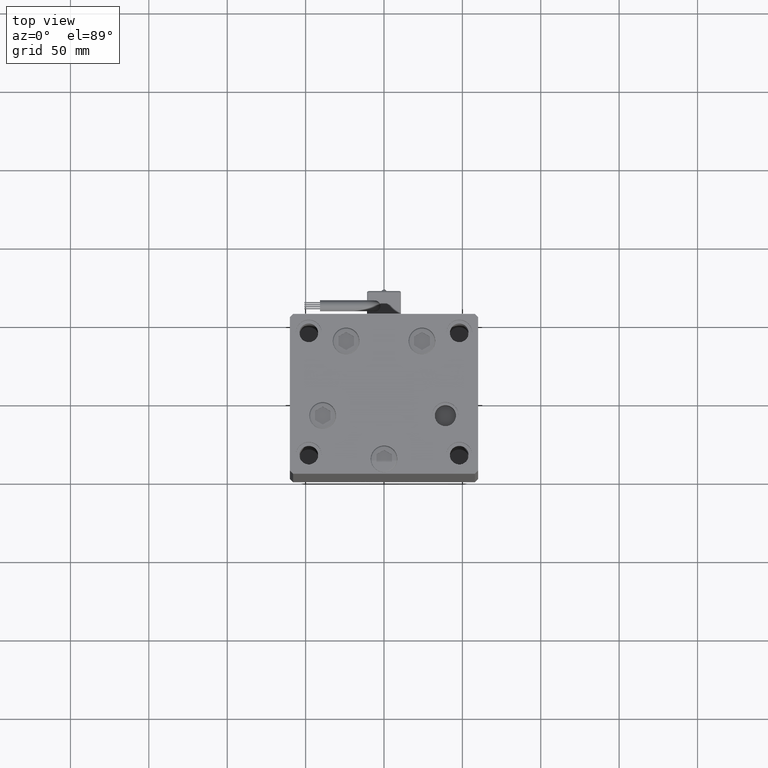
[diagram: clean part render]
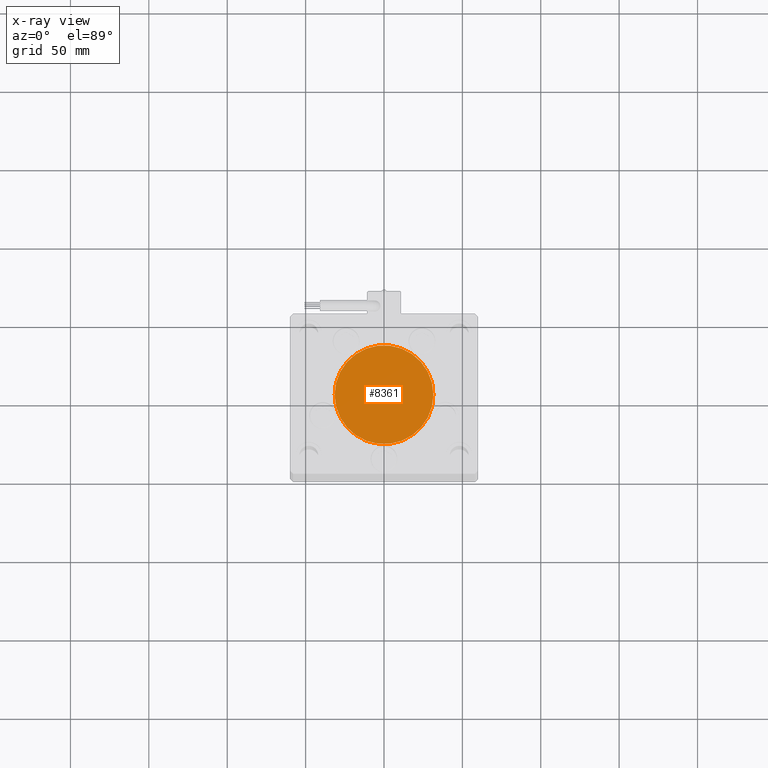
[diagram: x-ray — body ghosted, one internal face saturated and labeled with its STEP entity id]
A machine part, top view, then the same camera in x-ray: the body is ghosted and one INTERNAL B-rep face — a face not visible from any outside direction — is saturated and labeled: STEP entity #8361.
In plain terms, the highlighted planar face has unit normal (0, 0, -1).
Its self-contained STEP definition (entity closure, byte-faithful):
#577 = FACE_OUTER_BOUND ( 'NONE', #13425, .T. ) ;
#2435 = AXIS2_PLACEMENT_3D ( 'NONE', #29148, #16629, #54761 ) ;
#8361 = ADVANCED_FACE ( 'NONE', ( #577 ), #22991, .T. ) ;
#10413 = DIRECTION ( 'NONE',  ( -1.000000000000000000, 0.000000000000000000, 0.000000000000000000 ) ) ;
#12666 = VERTEX_POINT ( 'NONE', #42573 ) ;
#12932 = AXIS2_PLACEMENT_3D ( 'NONE', #23442, #48521, #10413 ) ;
#13425 = EDGE_LOOP ( 'NONE', ( #49765, #37209 ) ) ;
#16629 = DIRECTION ( 'NONE',  ( 0.000000000000000000, 0.000000000000000000, -1.000000000000000000 ) ) ;
#21156 = CARTESIAN_POINT ( 'NONE',  ( 0.000000000000000000, 0.000000000000000000, -34.25000000000000000 ) ) ;
#22991 = PLANE ( 'NONE',  #35499 ) ;
#23442 = CARTESIAN_POINT ( 'NONE',  ( 0.000000000000000000, 0.000000000000000000, -34.25000000000000000 ) ) ;
#26417 = DIRECTION ( 'NONE',  ( 0.000000000000000000, 0.000000000000000000, -1.000000000000000000 ) ) ;
#26442 = CIRCLE ( 'NONE', #2435, 31.50000000000000000 ) ;
#29031 = CARTESIAN_POINT ( 'NONE',  ( -31.50000000000000000, 3.857637417314161900E-15, -34.25000000000000000 ) ) ;
#29148 = CARTESIAN_POINT ( 'NONE',  ( 0.000000000000000000, 0.000000000000000000, -34.25000000000000000 ) ) ;
#29225 = EDGE_CURVE ( 'NONE', #47357, #12666, #26442, .T. ) ;
#29799 = CIRCLE ( 'NONE', #12932, 31.50000000000000000 ) ;
#34499 = DIRECTION ( 'NONE',  ( -1.000000000000000000, 0.000000000000000000, -0.000000000000000000 ) ) ;
#35499 = AXIS2_PLACEMENT_3D ( 'NONE', #21156, #26417, #34499 ) ;
#37209 = ORIENTED_EDGE ( 'NONE', *, *, #29225, .T. ) ;
#40372 = EDGE_CURVE ( 'NONE', #12666, #47357, #29799, .T. ) ;
#42573 = CARTESIAN_POINT ( 'NONE',  ( 31.50000000000000000, 0.000000000000000000, -34.25000000000000000 ) ) ;
#47357 = VERTEX_POINT ( 'NONE', #29031 ) ;
#48521 = DIRECTION ( 'NONE',  ( 0.000000000000000000, 0.000000000000000000, -1.000000000000000000 ) ) ;
#49765 = ORIENTED_EDGE ( 'NONE', *, *, #40372, .T. ) ;
#54761 = DIRECTION ( 'NONE',  ( -1.000000000000000000, 0.000000000000000000, 0.000000000000000000 ) ) ;